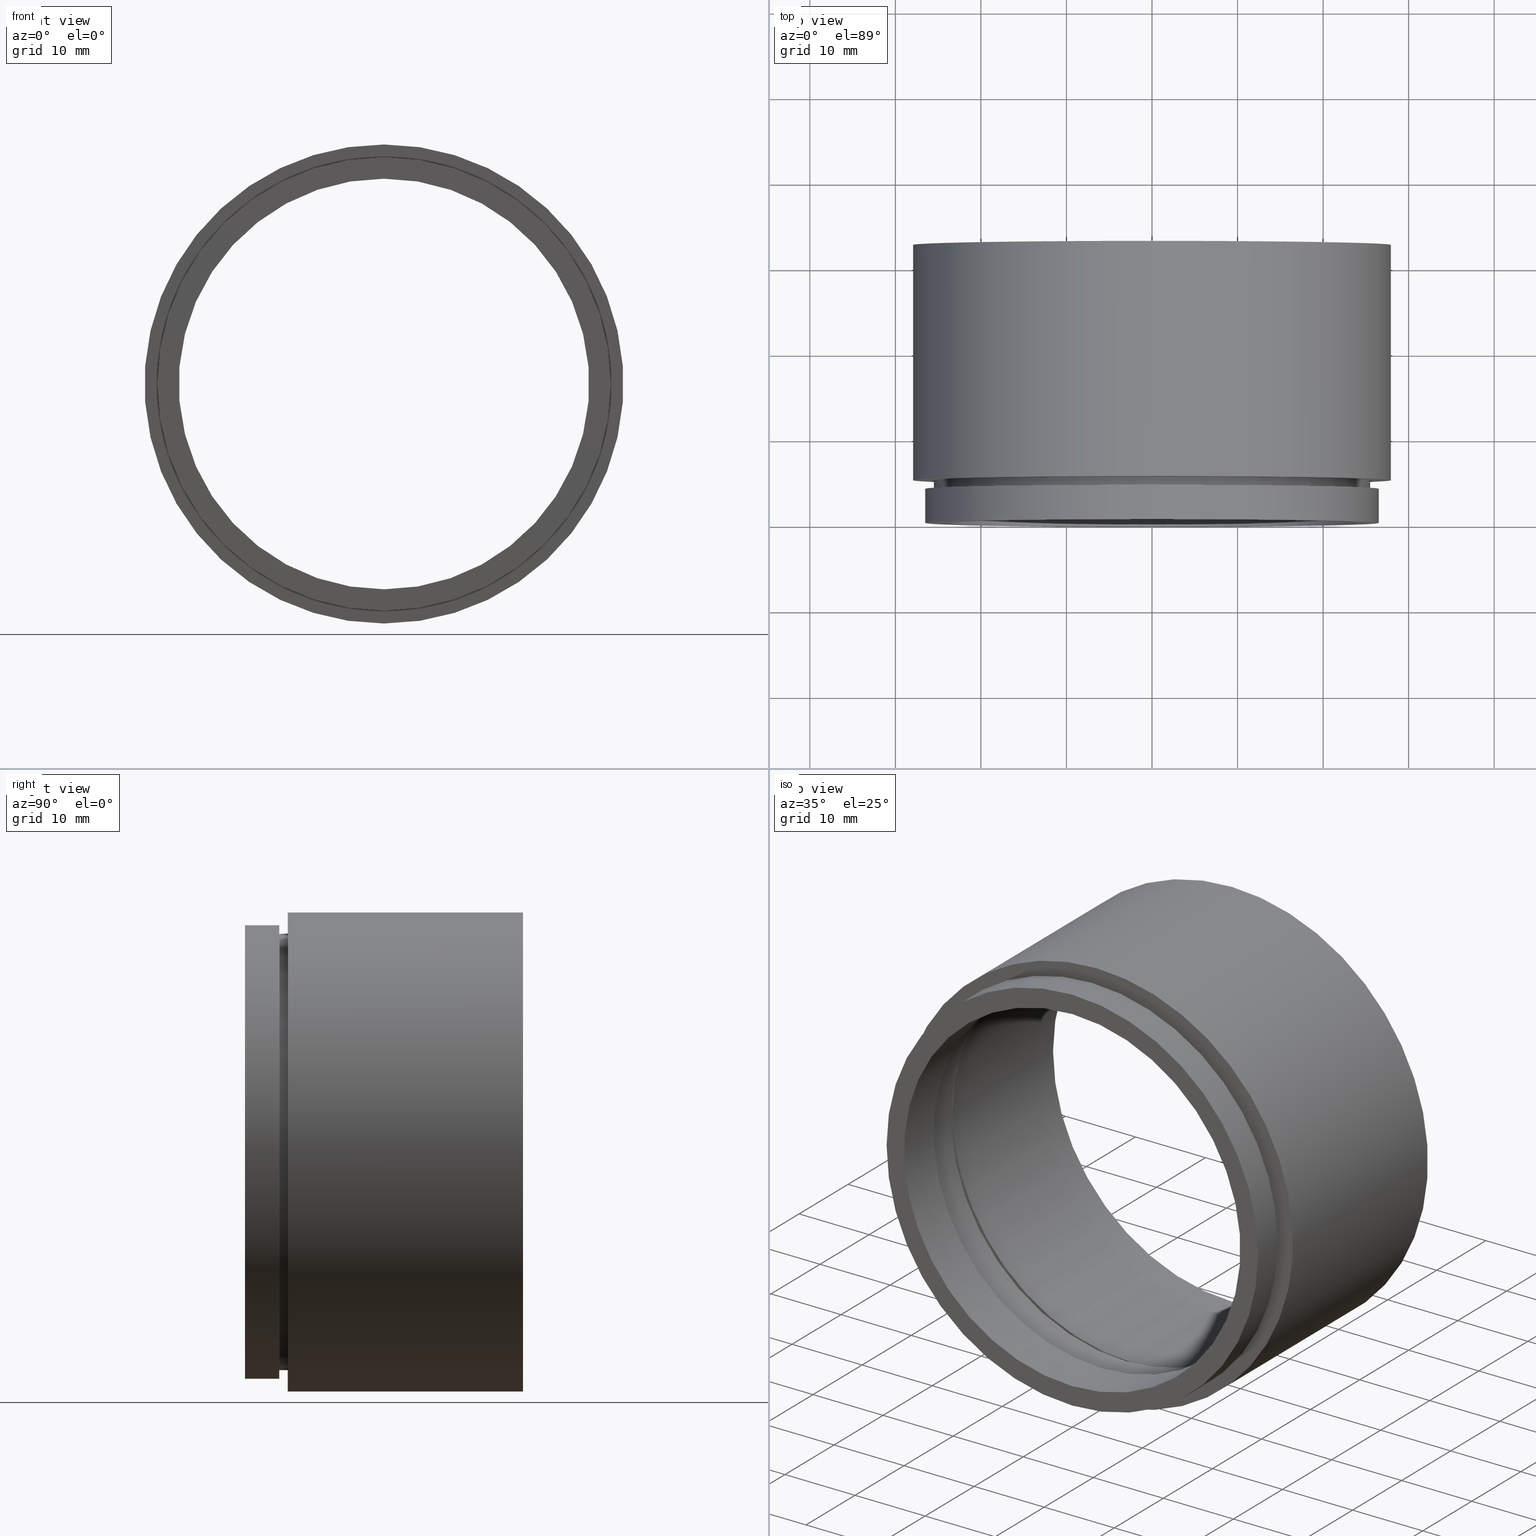
[diagram: canonical four-view strip — front | top / right | iso, engineering-drawing reading convention]
A machine part, canonical four-view strip (front | top / right | iso — engineering-drawing reading convention). The complete STEP part file that produces these views, byte-faithful:
ISO-10303-21;
HEADER;
FILE_DESCRIPTION (( 'STEP AP203' ),
    '1' );
FILE_NAME ('500005.STEP',
    '2019-08-29T06:59:19',
    ( 'user' ),
    ( '΢���й�' ),
    'SwSTEP 2.0',
    'SolidWorks 2016',
    '' );
FILE_SCHEMA (( 'CONFIG_CONTROL_DESIGN' ));
ENDSEC;

DATA;
#1 = CIRCLE ( 'NONE', #386, 25.50000000000000000 ) ;
#2 = AXIS2_PLACEMENT_3D ( 'NONE', #464, #144, #325 ) ;
#3 = FACE_BOUND ( 'NONE', #25, .T. ) ;
#4 = PLANE ( 'NONE',  #83 ) ;
#5 = DIRECTION ( 'NONE',  ( 0.0000000000000000000, 0.0000000000000000000, -1.000000000000000000 ) ) ;
#6 = EDGE_CURVE ( 'NONE', #61, #326, #532, .T. ) ;
#7 = VECTOR ( 'NONE', #216, 1000.000000000000000 ) ;
#8 = FACE_OUTER_BOUND ( 'NONE', #281, .T. ) ;
#9 = EDGE_CURVE ( 'NONE', #447, #265, #251, .T. ) ;
#10 = ORIENTED_EDGE ( 'NONE', *, *, #463, .F. ) ;
#11 = DIRECTION ( 'NONE',  ( -0.0000000000000000000, -1.000000000000000000, -0.0000000000000000000 ) ) ;
#12 = CARTESIAN_POINT ( 'NONE',  ( 0.0000000000000000000, 0.0000000000000000000, 0.0000000000000000000 ) ) ;
#13 = EDGE_CURVE ( 'NONE', #326, #339, #360, .T. ) ;
#14 = SECURITY_CLASSIFICATION_LEVEL ( 'unclassified' ) ;
#15 =( NAMED_UNIT ( * ) PLANE_ANGLE_UNIT ( ) SI_UNIT ( $, .RADIAN. ) );
#16 = EDGE_CURVE ( 'NONE', #345, #447, #391, .T. ) ;
#17 = VERTEX_POINT ( 'NONE', #600 ) ;
#18 = ORIENTED_EDGE ( 'NONE', *, *, #443, .F. ) ;
#19 = CARTESIAN_POINT ( 'NONE',  ( 3.122849337825750200E-015, 32.50000000000000000, 25.50000000000000000 ) ) ;
#20 = FACE_OUTER_BOUND ( 'NONE', #473, .T. ) ;
#21 = EDGE_CURVE ( 'NONE', #326, #61, #296, .T. ) ;
#22 = EDGE_CURVE ( 'NONE', #603, #541, #33, .T. ) ;
#23 = DIRECTION ( 'NONE',  ( 0.0000000000000000000, 0.0000000000000000000, -1.000000000000000000 ) ) ;
#24 = CARTESIAN_POINT ( 'NONE',  ( 3.122849337825750200E-015, 12.00000000000000000, 25.50000000000000000 ) ) ;
#25 = EDGE_LOOP ( 'NONE', ( #510, #602 ) ) ;
#26 = DIRECTION ( 'NONE',  ( -0.0000000000000000000, -1.000000000000000000, -0.0000000000000000000 ) ) ;
#27 = ORIENTED_EDGE ( 'NONE', *, *, #168, .T. ) ;
#28 = CARTESIAN_POINT ( 'NONE',  ( 0.0000000000000000000, 12.00000000000000000, -26.10000000000000100 ) ) ;
#29 = DIRECTION ( 'NONE',  ( -0.0000000000000000000, -1.000000000000000000, -0.0000000000000000000 ) ) ;
#30 = EDGE_CURVE ( 'NONE', #603, #176, #219, .T. ) ;
#31 = DIRECTION ( 'NONE',  ( -0.0000000000000000000, -1.000000000000000000, -0.0000000000000000000 ) ) ;
#32 = CARTESIAN_POINT ( 'NONE',  ( 0.0000000000000000000, 4.000000000000000000, 0.0000000000000000000 ) ) ;
#33 = CIRCLE ( 'NONE', #158, 26.50000000000000000 ) ;
#34 = AXIS2_PLACEMENT_3D ( 'NONE', #241, #26, #23 ) ;
#35 = APPLICATION_CONTEXT ( 'configuration controlled 3d designs of mechanical parts and assemblies' ) ;
#36 = DIRECTION ( 'NONE',  ( -0.0000000000000000000, -1.000000000000000000, -0.0000000000000000000 ) ) ;
#37 = DIRECTION ( 'NONE',  ( -0.0000000000000000000, -1.000000000000000000, -0.0000000000000000000 ) ) ;
#38 = PERSON_AND_ORGANIZATION ( #582, #558 ) ;
#39 = EDGE_CURVE ( 'NONE', #644, #298, #267, .T. ) ;
#40 = CARTESIAN_POINT ( 'NONE',  ( 3.122849337825750200E-015, 5.000000000000000000, 25.50000000000000000 ) ) ;
#41 = CIRCLE ( 'NONE', #315, 24.00000000000000000 ) ;
#42 = ORIENTED_EDGE ( 'NONE', *, *, #64, .T. ) ;
#43 = CC_DESIGN_APPROVAL ( #477, ( #527 ) ) ;
#44 = CARTESIAN_POINT ( 'NONE',  ( 0.0000000000000000000, 11.00000000000000200, 0.0000000000000000000 ) ) ;
#45 = CC_DESIGN_PERSON_AND_ORGANIZATION_ASSIGNMENT ( #601, #394, ( #527 ) ) ;
#46 = DIRECTION ( 'NONE',  ( -0.0000000000000000000, -1.000000000000000000, -0.0000000000000000000 ) ) ;
#47 = CIRCLE ( 'NONE', #257, 26.50000000000000000 ) ;
#48 = CIRCLE ( 'NONE', #381, 26.50000000000000000 ) ;
#49 = DIRECTION ( 'NONE',  ( 0.0000000000000000000, 0.0000000000000000000, -1.000000000000000000 ) ) ;
#50 = ORIENTED_EDGE ( 'NONE', *, *, #16, .F. ) ;
#51 = CIRCLE ( 'NONE', #34, 28.00000000000000000 ) ;
#52 = LINE ( 'NONE', #193, #361 ) ;
#53 = DIRECTION ( 'NONE',  ( -0.0000000000000000000, -1.000000000000000000, -0.0000000000000000000 ) ) ;
#54 = UNCERTAINTY_MEASURE_WITH_UNIT (LENGTH_MEASURE( 1.000000000000000100E-005 ), #574, 'distance_accuracy_value', 'NONE');
#55 = FACE_BOUND ( 'NONE', #634, .T. ) ;
#56 = DIRECTION ( 'NONE',  ( 0.0000000000000000000, 0.0000000000000000000, -1.000000000000000000 ) ) ;
#57 = PERSON_AND_ORGANIZATION ( #582, #558 ) ;
#58 = DIRECTION ( 'NONE',  ( -0.0000000000000000000, -1.000000000000000000, -0.0000000000000000000 ) ) ;
#59 = AXIS2_PLACEMENT_3D ( 'NONE', #283, #263, #177 ) ;
#60 = CARTESIAN_POINT ( 'NONE',  ( 0.0000000000000000000, 12.00000000000000000, -25.50000000000000000 ) ) ;
#61 = VERTEX_POINT ( 'NONE', #233 ) ;
#62 = LINE ( 'NONE', #498, #481 ) ;
#63 = FACE_OUTER_BOUND ( 'NONE', #635, .T. ) ;
#64 = EDGE_CURVE ( 'NONE', #17, #644, #104, .T. ) ;
#65 = CARTESIAN_POINT ( 'NONE',  ( 0.0000000000000000000, 32.50000000000000000, 0.0000000000000000000 ) ) ;
#66 = DIRECTION ( 'NONE',  ( -0.0000000000000000000, -1.000000000000000000, -0.0000000000000000000 ) ) ;
#67 = CC_DESIGN_DATE_AND_TIME_ASSIGNMENT ( #321, #398, ( #527 ) ) ;
#68 = VECTOR ( 'NONE', #92, 1000.000000000000000 ) ;
#69 = ORIENTED_EDGE ( 'NONE', *, *, #593, .T. ) ;
#70 = PRODUCT_DEFINITION_FORMATION_WITH_SPECIFIED_SOURCE ( '�κ�', '', #310, .NOT_KNOWN. ) ;
#71 = CALENDAR_DATE ( 2019, 29, 8 ) ;
#72 = CARTESIAN_POINT ( 'NONE',  ( 0.0000000000000000000, 5.000000000000000000, -28.00000000000000000 ) ) ;
#73 = DIRECTION ( 'NONE',  ( 0.0000000000000000000, 0.0000000000000000000, -1.000000000000000000 ) ) ;
#74 = CYLINDRICAL_SURFACE ( 'NONE', #557, 25.00000000000000000 ) ;
#75 = CARTESIAN_POINT ( 'NONE',  ( 0.0000000000000000000, 0.0000000000000000000, 0.0000000000000000000 ) ) ;
#76 = CALENDAR_DATE ( 2019, 29, 8 ) ;
#77 = PLANE ( 'NONE',  #535 ) ;
#78 = AXIS2_PLACEMENT_3D ( 'NONE', #572, #548, #127 ) ;
#79 = EDGE_LOOP ( 'NONE', ( #317, #630, #236, #390 ) ) ;
#80 = CIRCLE ( 'NONE', #476, 25.00000000000000000 ) ;
#81 = DIRECTION ( 'NONE',  ( 0.0000000000000000000, 0.0000000000000000000, -1.000000000000000000 ) ) ;
#82 = DIRECTION ( 'NONE',  ( -0.0000000000000000000, -1.000000000000000000, -0.0000000000000000000 ) ) ;
#83 = AXIS2_PLACEMENT_3D ( 'NONE', #568, #231, #229 ) ;
#84 = APPROVAL_DATE_TIME ( #209, #477 ) ;
#85 = CARTESIAN_POINT ( 'NONE',  ( 2.939152317953647900E-015, 6.000000000000000000, 24.00000000000000000 ) ) ;
#86 = ORIENTED_EDGE ( 'NONE', *, *, #140, .F. ) ;
#87 = AXIS2_PLACEMENT_3D ( 'NONE', #179, #495, #178 ) ;
#88 = ORIENTED_EDGE ( 'NONE', *, *, #577, .F. ) ;
#89 = ORIENTED_EDGE ( 'NONE', *, *, #140, .T. ) ;
#90 = DIRECTION ( 'NONE',  ( 0.0000000000000000000, -0.0000000000000000000, 1.000000000000000000 ) ) ;
#91 = APPROVAL_ROLE ( '' ) ;
#92 = DIRECTION ( 'NONE',  ( -0.0000000000000000000, -1.000000000000000000, -0.0000000000000000000 ) ) ;
#93 = CALENDAR_DATE ( 2019, 29, 8 ) ;
#94 = DIRECTION ( 'NONE',  ( -0.0000000000000000000, -1.000000000000000000, -0.0000000000000000000 ) ) ;
#95 = CARTESIAN_POINT ( 'NONE',  ( 0.0000000000000000000, 5.000000000000000000, 0.0000000000000000000 ) ) ;
#96 = CARTESIAN_POINT ( 'NONE',  ( 3.196328145774592300E-015, 11.00000000000000200, 26.10000000000000100 ) ) ;
#97 = ORIENTED_EDGE ( 'NONE', *, *, #30, .F. ) ;
#98 = DIRECTION ( 'NONE',  ( 0.0000000000000000000, 0.0000000000000000000, -1.000000000000000000 ) ) ;
#99 = MANIFOLD_SOLID_BREP ( '��ת1', #543 ) ;
#100 = AXIS2_PLACEMENT_3D ( 'NONE', #545, #126, #435 ) ;
#101 = CARTESIAN_POINT ( 'NONE',  ( 0.0000000000000000000, 4.000000000000000000, 0.0000000000000000000 ) ) ;
#102 = VECTOR ( 'NONE', #342, 1000.000000000000000 ) ;
#103 = VERTEX_POINT ( 'NONE', #113 ) ;
#104 = CIRCLE ( 'NONE', #159, 28.00000000000000000 ) ;
#105 = CARTESIAN_POINT ( 'NONE',  ( 0.0000000000000000000, 5.000000000000000000, -25.50000000000000000 ) ) ;
#106 = DIRECTION ( 'NONE',  ( -0.0000000000000000000, -1.000000000000000000, -0.0000000000000000000 ) ) ;
#107 = APPROVAL_DATE_TIME ( #508, #245 ) ;
#108 = DIRECTION ( 'NONE',  ( -0.0000000000000000000, -1.000000000000000000, -0.0000000000000000000 ) ) ;
#109 = EDGE_CURVE ( 'NONE', #188, #287, #475, .T. ) ;
#110 = VERTEX_POINT ( 'NONE', #372 ) ;
#111 = DIRECTION ( 'NONE',  ( -0.0000000000000000000, -1.000000000000000000, -0.0000000000000000000 ) ) ;
#112 = EDGE_LOOP ( 'NONE', ( #514, #259, #205, #626 ) ) ;
#113 = CARTESIAN_POINT ( 'NONE',  ( 0.0000000000000000000, 6.000000000000000900, -25.00000000000000000 ) ) ;
#114 = AXIS2_PLACEMENT_3D ( 'NONE', #445, #131, #81 ) ;
#115 = EDGE_CURVE ( 'NONE', #417, #110, #513, .T. ) ;
#116 = PERSON_AND_ORGANIZATION_ROLE ( 'design_owner' ) ;
#117 = CARTESIAN_POINT ( 'NONE',  ( 0.0000000000000000000, 0.0000000000000000000, 0.0000000000000000000 ) ) ;
#118 = CARTESIAN_POINT ( 'NONE',  ( 26.10000000000000100, 11.00000000000000200, 0.0000000000000000000 ) ) ;
#119 = VECTOR ( 'NONE', #106, 1000.000000000000000 ) ;
#120 = ORIENTED_EDGE ( 'NONE', *, *, #39, .F. ) ;
#121 = DIRECTION ( 'NONE',  ( 0.0000000000000000000, 0.0000000000000000000, -1.000000000000000000 ) ) ;
#122 = CYLINDRICAL_SURFACE ( 'NONE', #492, 24.00000000000000000 ) ;
#123 = EDGE_LOOP ( 'NONE', ( #351, #89 ) ) ;
#124 = EDGE_CURVE ( 'NONE', #345, #242, #129, .T. ) ;
#125 = CARTESIAN_POINT ( 'NONE',  ( 0.0000000000000000000, 12.00000000000000000, 0.0000000000000000000 ) ) ;
#126 = DIRECTION ( 'NONE',  ( -0.0000000000000000000, -1.000000000000000000, -0.0000000000000000000 ) ) ;
#127 = DIRECTION ( 'NONE',  ( 0.0000000000000000000, 0.0000000000000000000, -1.000000000000000000 ) ) ;
#128 = ORIENTED_EDGE ( 'NONE', *, *, #182, .F. ) ;
#129 = CIRCLE ( 'NONE', #511, 25.50000000000000000 ) ;
#130 = DIRECTION ( 'NONE',  ( -0.0000000000000000000, -1.000000000000000000, -0.0000000000000000000 ) ) ;
#131 = DIRECTION ( 'NONE',  ( -0.0000000000000000000, -1.000000000000000000, -0.0000000000000000000 ) ) ;
#132 = AXIS2_PLACEMENT_3D ( 'NONE', #194, #186, #145 ) ;
#133 = DIRECTION ( 'NONE',  ( -0.0000000000000000000, -1.000000000000000000, -0.0000000000000000000 ) ) ;
#134 = COORDINATED_UNIVERSAL_TIME_OFFSET ( 8, 0, .AHEAD. ) ;
#135 = DIRECTION ( 'NONE',  ( -0.0000000000000000000, -1.000000000000000000, -0.0000000000000000000 ) ) ;
#136 = VECTOR ( 'NONE', #36, 1000.000000000000000 ) ;
#137 = VECTOR ( 'NONE', #161, 1000.000000000000000 ) ;
#138 = VERTEX_POINT ( 'NONE', #517 ) ;
#139 = APPROVAL_STATUS ( 'not_yet_approved' ) ;
#140 = EDGE_CURVE ( 'NONE', #298, #426, #583, .T. ) ;
#141 = AXIS2_PLACEMENT_3D ( 'NONE', #598, #260, #619 ) ;
#142 = CARTESIAN_POINT ( 'NONE',  ( 25.00000000000000000, 6.000000000000000000, 0.0000000000000000000 ) ) ;
#143 = DIRECTION ( 'NONE',  ( -0.0000000000000000000, -1.000000000000000000, -0.0000000000000000000 ) ) ;
#144 = DIRECTION ( 'NONE',  ( 0.0000000000000000000, 0.0000000000000000000, 1.000000000000000000 ) ) ;
#145 = DIRECTION ( 'NONE',  ( 0.0000000000000000000, 0.0000000000000000000, -1.000000000000000000 ) ) ;
#146 = CIRCLE ( 'NONE', #403, 28.00000000000000000 ) ;
#147 = EDGE_CURVE ( 'NONE', #17, #426, #235, .T. ) ;
#148 = EDGE_LOOP ( 'NONE', ( #50, #431, #504, #367 ) ) ;
#149 = CC_DESIGN_PERSON_AND_ORGANIZATION_ASSIGNMENT ( #57, #383, ( #427 ) ) ;
#150 = AXIS2_PLACEMENT_3D ( 'NONE', #584, #413, #121 ) ;
#151 = MECHANICAL_CONTEXT ( 'NONE', #35, 'mechanical' ) ;
#152 = EDGE_CURVE ( 'NONE', #480, #274, #449, .T. ) ;
#153 = VECTOR ( 'NONE', #66, 1000.000000000000000 ) ;
#154 = DIRECTION ( 'NONE',  ( 0.0000000000000000000, 0.0000000000000000000, -1.000000000000000000 ) ) ;
#155 = CARTESIAN_POINT ( 'NONE',  ( 0.0000000000000000000, 11.00000000000000200, -25.00000000000000000 ) ) ;
#156 = CIRCLE ( 'NONE', #365, 25.50000000000000000 ) ;
#157 = CYLINDRICAL_SURFACE ( 'NONE', #483, 25.50000000000000000 ) ;
#158 = AXIS2_PLACEMENT_3D ( 'NONE', #264, #135, #210 ) ;
#159 = AXIS2_PLACEMENT_3D ( 'NONE', #65, #31, #432 ) ;
#160 = EDGE_CURVE ( 'NONE', #287, #188, #41, .T. ) ;
#161 = DIRECTION ( 'NONE',  ( -0.0000000000000000000, -1.000000000000000000, -0.0000000000000000000 ) ) ;
#162 = CARTESIAN_POINT ( 'NONE',  ( 0.0000000000000000000, 11.00000000000000200, 0.0000000000000000000 ) ) ;
#163 = ADVANCED_BREP_SHAPE_REPRESENTATION ( '500005', ( #99, #2 ), #224 ) ;
#164 = DIRECTION ( 'NONE',  ( 0.0000000000000000000, 0.0000000000000000000, -1.000000000000000000 ) ) ;
#165 = ORIENTED_EDGE ( 'NONE', *, *, #185, .T. ) ;
#166 = EDGE_CURVE ( 'NONE', #417, #103, #62, .T. ) ;
#167 = VECTOR ( 'NONE', #29, 1000.000000000000000 ) ;
#168 = EDGE_CURVE ( 'NONE', #474, #138, #621, .T. ) ;
#169 = CARTESIAN_POINT ( 'NONE',  ( 3.122849337825750200E-015, 0.0000000000000000000, 25.50000000000000000 ) ) ;
#170 = DIRECTION ( 'NONE',  ( 0.0000000000000000000, 0.0000000000000000000, -1.000000000000000000 ) ) ;
#171 = DIRECTION ( 'NONE',  ( 0.0000000000000000000, 1.000000000000000000, 0.0000000000000000000 ) ) ;
#172 = COORDINATED_UNIVERSAL_TIME_OFFSET ( 8, 0, .AHEAD. ) ;
#173 = CARTESIAN_POINT ( 'NONE',  ( 0.0000000000000000000, 6.000000000000000000, 0.0000000000000000000 ) ) ;
#174 = EDGE_CURVE ( 'NONE', #426, #298, #146, .T. ) ;
#175 = DIRECTION ( 'NONE',  ( 0.0000000000000000000, 1.000000000000000000, 0.0000000000000000000 ) ) ;
#176 = VERTEX_POINT ( 'NONE', #297 ) ;
#177 = DIRECTION ( 'NONE',  ( 0.0000000000000000000, 0.0000000000000000000, -1.000000000000000000 ) ) ;
#178 = DIRECTION ( 'NONE',  ( 0.0000000000000000000, 0.0000000000000000000, -1.000000000000000000 ) ) ;
#179 = CARTESIAN_POINT ( 'NONE',  ( 0.0000000000000000000, 0.0000000000000000000, 0.0000000000000000000 ) ) ;
#180 = DIRECTION ( 'NONE',  ( 0.0000000000000000000, 0.0000000000000000000, -1.000000000000000000 ) ) ;
#181 = CYLINDRICAL_SURFACE ( 'NONE', #446, 25.50000000000000000 ) ;
#182 = EDGE_CURVE ( 'NONE', #265, #447, #1, .T. ) ;
#183 = CARTESIAN_POINT ( 'NONE',  ( 0.0000000000000000000, 0.0000000000000000000, -25.50000000000000000 ) ) ;
#184 = DIRECTION ( 'NONE',  ( 0.0000000000000000000, 0.0000000000000000000, -1.000000000000000000 ) ) ;
#185 = EDGE_CURVE ( 'NONE', #357, #530, #441, .T. ) ;
#186 = DIRECTION ( 'NONE',  ( -0.0000000000000000000, -1.000000000000000000, -0.0000000000000000000 ) ) ;
#187 = LINE ( 'NONE', #643, #68 ) ;
#188 = VERTEX_POINT ( 'NONE', #562 ) ;
#189 = PLANE ( 'NONE',  #507 ) ;
#190 = CC_DESIGN_SECURITY_CLASSIFICATION ( #427, ( #70 ) ) ;
#191 = CYLINDRICAL_SURFACE ( 'NONE', #531, 26.10000000000000100 ) ;
#192 = EDGE_CURVE ( 'NONE', #287, #474, #314, .T. ) ;
#193 = CARTESIAN_POINT ( 'NONE',  ( 0.0000000000000000000, 0.0000000000000000000, -25.50000000000000000 ) ) ;
#194 = CARTESIAN_POINT ( 'NONE',  ( 0.0000000000000000000, 12.00000000000000000, 0.0000000000000000000 ) ) ;
#195 = ORIENTED_EDGE ( 'NONE', *, *, #593, .F. ) ;
#196 = DIRECTION ( 'NONE',  ( 0.0000000000000000000, 0.0000000000000000000, -1.000000000000000000 ) ) ;
#197 = AXIS2_PLACEMENT_3D ( 'NONE', #373, #624, #524 ) ;
#198 = AXIS2_PLACEMENT_3D ( 'NONE', #162, #397, #196 ) ;
#199 = DIRECTION ( 'NONE',  ( 0.0000000000000000000, 0.0000000000000000000, -1.000000000000000000 ) ) ;
#200 = LOCAL_TIME ( 14, 59, 19.00000000000000000, #134 ) ;
#201 = DATE_TIME_ROLE ( 'classification_date' ) ;
#202 = CARTESIAN_POINT ( 'NONE',  ( 0.0000000000000000000, 12.00000000000000000, 0.0000000000000000000 ) ) ;
#203 = AXIS2_PLACEMENT_3D ( 'NONE', #625, #143, #170 ) ;
#204 = DIRECTION ( 'NONE',  ( -0.0000000000000000000, -1.000000000000000000, -0.0000000000000000000 ) ) ;
#205 = ORIENTED_EDGE ( 'NONE', *, *, #240, .T. ) ;
#206 = CYLINDRICAL_SURFACE ( 'NONE', #248, 26.50000000000000000 ) ;
#207 = PLANE ( 'NONE',  #294 ) ;
#208 = DATE_AND_TIME ( #71, #200 ) ;
#209 = DATE_AND_TIME ( #93, #247 ) ;
#210 = DIRECTION ( 'NONE',  ( 0.0000000000000000000, 0.0000000000000000000, -1.000000000000000000 ) ) ;
#211 = CIRCLE ( 'NONE', #423, 26.50000000000000000 ) ;
#212 = CIRCLE ( 'NONE', #493, 26.10000000000000100 ) ;
#213 = FACE_BOUND ( 'NONE', #605, .T. ) ;
#214 = APPLICATION_CONTEXT ( 'configuration controlled 3d designs of mechanical parts and assemblies' ) ;
#215 = CARTESIAN_POINT ( 'NONE',  ( 0.0000000000000000000, 0.0000000000000000000, 0.0000000000000000000 ) ) ;
#216 = DIRECTION ( 'NONE',  ( -0.0000000000000000000, -1.000000000000000000, -0.0000000000000000000 ) ) ;
#217 = EDGE_LOOP ( 'NONE', ( #618, #376, #610, #382 ) ) ;
#218 = CARTESIAN_POINT ( 'NONE',  ( 0.0000000000000000000, 32.50000000000000000, 0.0000000000000000000 ) ) ;
#219 = LINE ( 'NONE', #389, #7 ) ;
#220 = DIRECTION ( 'NONE',  ( 0.0000000000000000000, -1.000000000000000000, -0.0000000000000000000 ) ) ;
#221 = DIRECTION ( 'NONE',  ( 0.0000000000000000000, 0.0000000000000000000, -1.000000000000000000 ) ) ;
#222 = DIRECTION ( 'NONE',  ( -0.0000000000000000000, -1.000000000000000000, -0.0000000000000000000 ) ) ;
#223 = ORIENTED_EDGE ( 'NONE', *, *, #109, .T. ) ;
#224 =( GEOMETRIC_REPRESENTATION_CONTEXT ( 3 ) GLOBAL_UNCERTAINTY_ASSIGNED_CONTEXT ( ( #54 ) ) GLOBAL_UNIT_ASSIGNED_CONTEXT ( ( #574, #15, #434 ) ) REPRESENTATION_CONTEXT ( 'NONE', 'WORKASPACE' ) );
#225 = ORIENTED_EDGE ( 'NONE', *, *, #255, .T. ) ;
#226 = CARTESIAN_POINT ( 'NONE',  ( 0.0000000000000000000, 5.000000000000000000, 0.0000000000000000000 ) ) ;
#227 = CARTESIAN_POINT ( 'NONE',  ( 0.0000000000000000000, 0.0000000000000000000, 0.0000000000000000000 ) ) ;
#228 = CARTESIAN_POINT ( 'NONE',  ( 0.0000000000000000000, 0.0000000000000000000, 0.0000000000000000000 ) ) ;
#229 = DIRECTION ( 'NONE',  ( 0.0000000000000000000, -0.0000000000000000000, 1.000000000000000000 ) ) ;
#230 = EDGE_CURVE ( 'NONE', #541, #425, #187, .T. ) ;
#231 = DIRECTION ( 'NONE',  ( 0.0000000000000000000, 1.000000000000000000, 0.0000000000000000000 ) ) ;
#232 = SHAPE_DEFINITION_REPRESENTATION ( #505, #163 ) ;
#233 = CARTESIAN_POINT ( 'NONE',  ( 3.196328145774592300E-015, 12.00000000000000000, 26.10000000000000100 ) ) ;
#234 = EDGE_CURVE ( 'NONE', #242, #345, #156, .T. ) ;
#235 = LINE ( 'NONE', #615, #573 ) ;
#236 = ORIENTED_EDGE ( 'NONE', *, *, #166, .T. ) ;
#237 = CARTESIAN_POINT ( 'NONE',  ( 0.0000000000000000000, 4.000000000000000000, -26.50000000000000000 ) ) ;
#238 = CARTESIAN_POINT ( 'NONE',  ( 3.429011037612589300E-015, 0.0000000000000000000, 28.00000000000000000 ) ) ;
#239 = EDGE_CURVE ( 'NONE', #274, #480, #416, .T. ) ;
#240 = EDGE_CURVE ( 'NONE', #188, #138, #604, .T. ) ;
#241 = CARTESIAN_POINT ( 'NONE',  ( 0.0000000000000000000, 32.50000000000000000, 0.0000000000000000000 ) ) ;
#242 = VERTEX_POINT ( 'NONE', #540 ) ;
#243 = ORIENTED_EDGE ( 'NONE', *, *, #585, .T. ) ;
#244 = CARTESIAN_POINT ( 'NONE',  ( 3.061616997868383000E-015, 6.000000000000000900, 25.00000000000000000 ) ) ;
#245 = APPROVAL ( #139, 'δָ��' ) ;
#246 = CARTESIAN_POINT ( 'NONE',  ( 0.0000000000000000000, 6.000000000000000900, 0.0000000000000000000 ) ) ;
#247 = LOCAL_TIME ( 14, 59, 19.00000000000000000, #387 ) ;
#248 = AXIS2_PLACEMENT_3D ( 'NONE', #512, #293, #98 ) ;
#249 = DIRECTION ( 'NONE',  ( 0.0000000000000000000, 0.0000000000000000000, -1.000000000000000000 ) ) ;
#250 = ORIENTED_EDGE ( 'NONE', *, *, #454, .F. ) ;
#251 = CIRCLE ( 'NONE', #141, 25.50000000000000000 ) ;
#252 = CARTESIAN_POINT ( 'NONE',  ( 3.245314017740485800E-015, 0.0000000000000000000, 26.50000000000000000 ) ) ;
#253 = ORIENTED_EDGE ( 'NONE', *, *, #21, .T. ) ;
#254 = DIRECTION ( 'NONE',  ( -0.0000000000000000000, -1.000000000000000000, -0.0000000000000000000 ) ) ;
#255 = EDGE_CURVE ( 'NONE', #541, #603, #211, .T. ) ;
#256 = PERSON_AND_ORGANIZATION_ROLE ( 'creator' ) ;
#257 = AXIS2_PLACEMENT_3D ( 'NONE', #227, #11, #269 ) ;
#258 = EDGE_LOOP ( 'NONE', ( #253, #348 ) ) ;
#259 = ORIENTED_EDGE ( 'NONE', *, *, #109, .F. ) ;
#260 = DIRECTION ( 'NONE',  ( -0.0000000000000000000, -1.000000000000000000, -0.0000000000000000000 ) ) ;
#261 = FACE_BOUND ( 'NONE', #349, .T. ) ;
#262 = PERSON_AND_ORGANIZATION ( #582, #558 ) ;
#263 = DIRECTION ( 'NONE',  ( -0.0000000000000000000, -1.000000000000000000, -0.0000000000000000000 ) ) ;
#264 = CARTESIAN_POINT ( 'NONE',  ( 0.0000000000000000000, 4.000000000000000000, 0.0000000000000000000 ) ) ;
#265 = VERTEX_POINT ( 'NONE', #60 ) ;
#266 = EDGE_CURVE ( 'NONE', #110, #417, #597, .T. ) ;
#267 = LINE ( 'NONE', #238, #374 ) ;
#268 = LINE ( 'NONE', #183, #639 ) ;
#269 = DIRECTION ( 'NONE',  ( 0.0000000000000000000, 0.0000000000000000000, -1.000000000000000000 ) ) ;
#270 = CARTESIAN_POINT ( 'NONE',  ( 2.939152317953647900E-015, 0.0000000000000000000, 24.00000000000000000 ) ) ;
#271 = AXIS2_PLACEMENT_3D ( 'NONE', #226, #37, #73 ) ;
#272 = DIRECTION ( 'NONE',  ( -0.0000000000000000000, -1.000000000000000000, -0.0000000000000000000 ) ) ;
#273 = CARTESIAN_POINT ( 'NONE',  ( 2.939152317953647900E-015, 0.0000000000000000000, 24.00000000000000000 ) ) ;
#274 = VERTEX_POINT ( 'NONE', #311 ) ;
#275 = EDGE_LOOP ( 'NONE', ( #537, #304, #550, #97 ) ) ;
#276 = CYLINDRICAL_SURFACE ( 'NONE', #203, 24.00000000000000000 ) ;
#277 = DIRECTION ( 'NONE',  ( -0.0000000000000000000, -1.000000000000000000, -0.0000000000000000000 ) ) ;
#278 = FACE_OUTER_BOUND ( 'NONE', #217, .T. ) ;
#279 = AXIS2_PLACEMENT_3D ( 'NONE', #101, #461, #221 ) ;
#280 = CARTESIAN_POINT ( 'NONE',  ( 0.0000000000000000000, 0.0000000000000000000, -26.10000000000000100 ) ) ;
#281 = EDGE_LOOP ( 'NONE', ( #344, #649, #405, #359 ) ) ;
#282 = EDGE_LOOP ( 'NONE', ( #331, #494, #27, #290 ) ) ;
#283 = CARTESIAN_POINT ( 'NONE',  ( 0.0000000000000000000, 11.00000000000000200, 0.0000000000000000000 ) ) ;
#284 = DIRECTION ( 'NONE',  ( -0.0000000000000000000, -1.000000000000000000, -0.0000000000000000000 ) ) ;
#285 = DIRECTION ( 'NONE',  ( -0.0000000000000000000, -1.000000000000000000, -0.0000000000000000000 ) ) ;
#286 = EDGE_LOOP ( 'NONE', ( #566, #332 ) ) ;
#287 = VERTEX_POINT ( 'NONE', #85 ) ;
#288 = CARTESIAN_POINT ( 'NONE',  ( 0.0000000000000000000, 4.000000000000000000, 0.0000000000000000000 ) ) ;
#289 = LOCAL_TIME ( 14, 59, 19.00000000000000000, #172 ) ;
#290 = ORIENTED_EDGE ( 'NONE', *, *, #240, .F. ) ;
#291 = CARTESIAN_POINT ( 'NONE',  ( 0.0000000000000000000, 6.000000000000000000, 0.0000000000000000000 ) ) ;
#292 = ORIENTED_EDGE ( 'NONE', *, *, #30, .T. ) ;
#293 = DIRECTION ( 'NONE',  ( -0.0000000000000000000, -1.000000000000000000, -0.0000000000000000000 ) ) ;
#294 = AXIS2_PLACEMENT_3D ( 'NONE', #629, #489, #534 ) ;
#295 = APPROVAL_STATUS ( 'not_yet_approved' ) ;
#296 = CIRCLE ( 'NONE', #370, 26.10000000000000100 ) ;
#297 = CARTESIAN_POINT ( 'NONE',  ( 0.0000000000000000000, 0.0000000000000000000, -26.50000000000000000 ) ) ;
#298 = VERTEX_POINT ( 'NONE', #622 ) ;
#299 = FACE_BOUND ( 'NONE', #399, .T. ) ;
#300 = DIRECTION ( 'NONE',  ( -0.0000000000000000000, -1.000000000000000000, -0.0000000000000000000 ) ) ;
#301 = PERSON_AND_ORGANIZATION ( #582, #558 ) ;
#302 = DIRECTION ( 'NONE',  ( 0.0000000000000000000, -1.000000000000000000, -0.0000000000000000000 ) ) ;
#303 = APPROVAL_PERSON_ORGANIZATION ( #354, #439, #458 ) ;
#304 = ORIENTED_EDGE ( 'NONE', *, *, #230, .T. ) ;
#305 = EDGE_LOOP ( 'NONE', ( #564, #225, #292, #195 ) ) ;
#306 = ORIENTED_EDGE ( 'NONE', *, *, #168, .F. ) ;
#307 = DIRECTION ( 'NONE',  ( 0.0000000000000000000, 0.0000000000000000000, -1.000000000000000000 ) ) ;
#308 = CC_DESIGN_PERSON_AND_ORGANIZATION_ASSIGNMENT ( #38, #256, ( #70 ) ) ;
#309 = CARTESIAN_POINT ( 'NONE',  ( 0.0000000000000000000, 0.0000000000000000000, 0.0000000000000000000 ) ) ;
#310 = PRODUCT ( '500005', '500005', '', ( #151 ) ) ;
#311 = CARTESIAN_POINT ( 'NONE',  ( 0.0000000000000000000, 4.000000000000000000, -25.50000000000000000 ) ) ;
#312 = ORIENTED_EDGE ( 'NONE', *, *, #13, .F. ) ;
#313 = ORIENTED_EDGE ( 'NONE', *, *, #463, .T. ) ;
#314 = LINE ( 'NONE', #273, #102 ) ;
#315 = AXIS2_PLACEMENT_3D ( 'NONE', #291, #556, #546 ) ;
#316 = CIRCLE ( 'NONE', #87, 24.00000000000000000 ) ;
#317 = ORIENTED_EDGE ( 'NONE', *, *, #378, .F. ) ;
#318 = ORIENTED_EDGE ( 'NONE', *, *, #152, .F. ) ;
#319 = DIRECTION ( 'NONE',  ( -0.0000000000000000000, -1.000000000000000000, -0.0000000000000000000 ) ) ;
#320 = APPLICATION_PROTOCOL_DEFINITION ( 'international standard', 'config_control_design', 1994, #35 ) ;
#321 = DATE_AND_TIME ( #76, #407 ) ;
#322 = DIRECTION ( 'NONE',  ( -0.0000000000000000000, -1.000000000000000000, -0.0000000000000000000 ) ) ;
#323 = CARTESIAN_POINT ( 'NONE',  ( 3.122849337825750200E-015, 0.0000000000000000000, 25.50000000000000000 ) ) ;
#324 = EDGE_LOOP ( 'NONE', ( #457, #333, #628, #312 ) ) ;
#325 = DIRECTION ( 'NONE',  ( 1.000000000000000000, 0.0000000000000000000, 0.0000000000000000000 ) ) ;
#326 = VERTEX_POINT ( 'NONE', #28 ) ;
#327 = FACE_OUTER_BOUND ( 'NONE', #123, .T. ) ;
#328 = DESIGN_CONTEXT ( 'detailed design', #214, 'design' ) ;
#329 = CYLINDRICAL_SURFACE ( 'NONE', #589, 28.00000000000000000 ) ;
#330 = DIRECTION ( 'NONE',  ( 0.0000000000000000000, 1.000000000000000000, 0.0000000000000000000 ) ) ;
#331 = ORIENTED_EDGE ( 'NONE', *, *, #160, .F. ) ;
#332 = ORIENTED_EDGE ( 'NONE', *, *, #499, .F. ) ;
#333 = ORIENTED_EDGE ( 'NONE', *, *, #569, .T. ) ;
#334 = CC_DESIGN_APPROVAL ( #439, ( #427 ) ) ;
#335 = CALENDAR_DATE ( 2019, 29, 8 ) ;
#336 = ORIENTED_EDGE ( 'NONE', *, *, #124, .T. ) ;
#337 = EDGE_LOOP ( 'NONE', ( #10, #243, #488, #318 ) ) ;
#338 = DIRECTION ( 'NONE',  ( 0.0000000000000000000, 0.0000000000000000000, -1.000000000000000000 ) ) ;
#339 = VERTEX_POINT ( 'NONE', #518 ) ;
#340 = DIRECTION ( 'NONE',  ( -0.0000000000000000000, -1.000000000000000000, -0.0000000000000000000 ) ) ;
#341 = DIRECTION ( 'NONE',  ( -0.0000000000000000000, -1.000000000000000000, -0.0000000000000000000 ) ) ;
#342 = DIRECTION ( 'NONE',  ( -0.0000000000000000000, -1.000000000000000000, -0.0000000000000000000 ) ) ;
#343 = CC_DESIGN_PERSON_AND_ORGANIZATION_ASSIGNMENT ( #301, #627, ( #70 ) ) ;
#344 = ORIENTED_EDGE ( 'NONE', *, *, #266, .F. ) ;
#345 = VERTEX_POINT ( 'NONE', #19 ) ;
#346 = VERTEX_POINT ( 'NONE', #96 ) ;
#347 = DIRECTION ( 'NONE',  ( -0.0000000000000000000, -1.000000000000000000, -0.0000000000000000000 ) ) ;
#348 = ORIENTED_EDGE ( 'NONE', *, *, #6, .T. ) ;
#349 = EDGE_LOOP ( 'NONE', ( #88, #306 ) ) ;
#350 = DIRECTION ( 'NONE',  ( 0.0000000000000000000, 0.0000000000000000000, -1.000000000000000000 ) ) ;
#351 = ORIENTED_EDGE ( 'NONE', *, *, #174, .T. ) ;
#352 = FACE_OUTER_BOUND ( 'NONE', #79, .T. ) ;
#353 = CARTESIAN_POINT ( 'NONE',  ( 25.50000000000000000, 5.000000000000000000, 0.0000000000000000000 ) ) ;
#354 = PERSON_AND_ORGANIZATION ( #582, #558 ) ;
#355 = FACE_OUTER_BOUND ( 'NONE', #148, .T. ) ;
#356 = DIRECTION ( 'NONE',  ( -0.0000000000000000000, -1.000000000000000000, -0.0000000000000000000 ) ) ;
#357 = VERTEX_POINT ( 'NONE', #105 ) ;
#358 = CARTESIAN_POINT ( 'NONE',  ( 3.429011037612589300E-015, 32.50000000000000000, 28.00000000000000000 ) ) ;
#359 = ORIENTED_EDGE ( 'NONE', *, *, #166, .F. ) ;
#360 = LINE ( 'NONE', #280, #137 ) ;
#361 = VECTOR ( 'NONE', #347, 1000.000000000000000 ) ;
#362 = CARTESIAN_POINT ( 'NONE',  ( 0.0000000000000000000, 32.50000000000000000, 0.0000000000000000000 ) ) ;
#363 = PERSON_AND_ORGANIZATION ( #582, #558 ) ;
#364 = ADVANCED_FACE ( 'NONE', ( #278 ), #157, .F. ) ;
#365 = AXIS2_PLACEMENT_3D ( 'NONE', #218, #300, #338 ) ;
#366 = DIRECTION ( 'NONE',  ( 0.0000000000000000000, 0.0000000000000000000, -1.000000000000000000 ) ) ;
#367 = ORIENTED_EDGE ( 'NONE', *, *, #182, .T. ) ;
#368 = EDGE_LOOP ( 'NONE', ( #486, #640 ) ) ;
#369 = DIRECTION ( 'NONE',  ( -0.0000000000000000000, -1.000000000000000000, -0.0000000000000000000 ) ) ;
#370 = AXIS2_PLACEMENT_3D ( 'NONE', #125, #356, #576 ) ;
#371 = FACE_BOUND ( 'NONE', #411, .T. ) ;
#372 = CARTESIAN_POINT ( 'NONE',  ( 3.061616997868383000E-015, 11.00000000000000200, 25.00000000000000000 ) ) ;
#373 = CARTESIAN_POINT ( 'NONE',  ( 0.0000000000000000000, 0.0000000000000000000, 0.0000000000000000000 ) ) ;
#374 = VECTOR ( 'NONE', #638, 1000.000000000000000 ) ;
#375 = EDGE_LOOP ( 'NONE', ( #479, #623, #392, #549 ) ) ;
#376 = ORIENTED_EDGE ( 'NONE', *, *, #16, .T. ) ;
#377 = APPROVAL_ROLE ( '' ) ;
#378 = EDGE_CURVE ( 'NONE', #110, #418, #538, .T. ) ;
#379 = CARTESIAN_POINT ( 'NONE',  ( 0.0000000000000000000, 0.0000000000000000000, -24.00000000000000000 ) ) ;
#380 = CYLINDRICAL_SURFACE ( 'NONE', #515, 25.00000000000000000 ) ;
#381 = AXIS2_PLACEMENT_3D ( 'NONE', #215, #272, #450 ) ;
#382 = ORIENTED_EDGE ( 'NONE', *, *, #460, .F. ) ;
#383 = PERSON_AND_ORGANIZATION_ROLE ( 'classification_officer' ) ;
#384 = ORIENTED_EDGE ( 'NONE', *, *, #585, .F. ) ;
#385 = FACE_OUTER_BOUND ( 'NONE', #402, .T. ) ;
#386 = AXIS2_PLACEMENT_3D ( 'NONE', #202, #108, #366 ) ;
#387 = COORDINATED_UNIVERSAL_TIME_OFFSET ( 8, 0, .AHEAD. ) ;
#388 = ADVANCED_FACE ( 'NONE', ( #63 ), #567, .T. ) ;
#389 = CARTESIAN_POINT ( 'NONE',  ( 0.0000000000000000000, 0.0000000000000000000, -26.50000000000000000 ) ) ;
#390 = ORIENTED_EDGE ( 'NONE', *, *, #408, .T. ) ;
#391 = LINE ( 'NONE', #169, #119 ) ;
#392 = ORIENTED_EDGE ( 'NONE', *, *, #13, .T. ) ;
#393 = VECTOR ( 'NONE', #406, 1000.000000000000000 ) ;
#394 = PERSON_AND_ORGANIZATION_ROLE ( 'creator' ) ;
#395 = DIRECTION ( 'NONE',  ( 0.0000000000000000000, 0.0000000000000000000, -1.000000000000000000 ) ) ;
#396 = CIRCLE ( 'NONE', #59, 26.10000000000000100 ) ;
#397 = DIRECTION ( 'NONE',  ( -0.0000000000000000000, -1.000000000000000000, -0.0000000000000000000 ) ) ;
#398 = DATE_TIME_ROLE ( 'creation_date' ) ;
#399 = EDGE_LOOP ( 'NONE', ( #223, #645 ) ) ;
#400 = CYLINDRICAL_SURFACE ( 'NONE', #487, 25.50000000000000000 ) ;
#401 = DIRECTION ( 'NONE',  ( 0.0000000000000000000, 0.0000000000000000000, -1.000000000000000000 ) ) ;
#402 = EDGE_LOOP ( 'NONE', ( #165, #313, #496, #250 ) ) ;
#403 = AXIS2_PLACEMENT_3D ( 'NONE', #95, #53, #154 ) ;
#404 = FACE_BOUND ( 'NONE', #433, .T. ) ;
#405 = ORIENTED_EDGE ( 'NONE', *, *, #647, .T. ) ;
#406 = DIRECTION ( 'NONE',  ( -0.0000000000000000000, -1.000000000000000000, -0.0000000000000000000 ) ) ;
#407 = LOCAL_TIME ( 14, 59, 19.00000000000000000, #631 ) ;
#408 = EDGE_CURVE ( 'NONE', #103, #418, #80, .T. ) ;
#409 = ADVANCED_FACE ( 'NONE', ( #462 ), #122, .F. ) ;
#410 = EDGE_LOOP ( 'NONE', ( #459, #596 ) ) ;
#411 = EDGE_LOOP ( 'NONE', ( #646, #336 ) ) ;
#412 = CARTESIAN_POINT ( 'NONE',  ( 3.122849337825750200E-015, 4.000000000000000000, 25.50000000000000000 ) ) ;
#413 = DIRECTION ( 'NONE',  ( -0.0000000000000000000, -1.000000000000000000, -0.0000000000000000000 ) ) ;
#414 = CYLINDRICAL_SURFACE ( 'NONE', #100, 26.10000000000000100 ) ;
#415 = AXIS2_PLACEMENT_3D ( 'NONE', #173, #428, #184 ) ;
#416 = CIRCLE ( 'NONE', #436, 25.50000000000000000 ) ;
#417 = VERTEX_POINT ( 'NONE', #155 ) ;
#418 = VERTEX_POINT ( 'NONE', #244 ) ;
#419 = ADVANCED_FACE ( 'NONE', ( #385 ), #400, .T. ) ;
#420 = ADVANCED_FACE ( 'NONE', ( #213, #429 ), #607, .T. ) ;
#421 = FACE_OUTER_BOUND ( 'NONE', #275, .T. ) ;
#422 = CIRCLE ( 'NONE', #612, 25.50000000000000000 ) ;
#423 = AXIS2_PLACEMENT_3D ( 'NONE', #32, #204, #49 ) ;
#424 = DIRECTION ( 'NONE',  ( 0.0000000000000000000, -0.0000000000000000000, 1.000000000000000000 ) ) ;
#425 = VERTEX_POINT ( 'NONE', #252 ) ;
#426 = VERTEX_POINT ( 'NONE', #72 ) ;
#427 = SECURITY_CLASSIFICATION ( '', '', #14 ) ;
#428 = DIRECTION ( 'NONE',  ( -0.0000000000000000000, -1.000000000000000000, -0.0000000000000000000 ) ) ;
#429 = FACE_OUTER_BOUND ( 'NONE', #586, .T. ) ;
#430 = CIRCLE ( 'NONE', #114, 25.00000000000000000 ) ;
#431 = ORIENTED_EDGE ( 'NONE', *, *, #234, .F. ) ;
#432 = DIRECTION ( 'NONE',  ( 0.0000000000000000000, 0.0000000000000000000, -1.000000000000000000 ) ) ;
#433 = EDGE_LOOP ( 'NONE', ( #578, #384 ) ) ;
#434 =( NAMED_UNIT ( * ) SI_UNIT ( $, .STERADIAN. ) SOLID_ANGLE_UNIT ( ) );
#435 = DIRECTION ( 'NONE',  ( 0.0000000000000000000, 0.0000000000000000000, -1.000000000000000000 ) ) ;
#436 = AXIS2_PLACEMENT_3D ( 'NONE', #288, #111, #307 ) ;
#437 = ADVANCED_FACE ( 'NONE', ( #299, #452 ), #189, .T. ) ;
#438 = CARTESIAN_POINT ( 'NONE',  ( 0.0000000000000000000, 0.0000000000000000000, 0.0000000000000000000 ) ) ;
#439 = APPROVAL ( #295, 'δָ��' ) ;
#440 = AXIS2_PLACEMENT_3D ( 'NONE', #560, #369, #642 ) ;
#441 = CIRCLE ( 'NONE', #271, 25.50000000000000000 ) ;
#442 = PERSON_AND_ORGANIZATION ( #582, #558 ) ;
#443 = EDGE_CURVE ( 'NONE', #339, #346, #212, .T. ) ;
#444 = DIRECTION ( 'NONE',  ( 0.0000000000000000000, -0.0000000000000000000, 1.000000000000000000 ) ) ;
#445 = CARTESIAN_POINT ( 'NONE',  ( 0.0000000000000000000, 6.000000000000000900, 0.0000000000000000000 ) ) ;
#446 = AXIS2_PLACEMENT_3D ( 'NONE', #228, #284, #164 ) ;
#447 = VERTEX_POINT ( 'NONE', #24 ) ;
#448 = ADVANCED_FACE ( 'NONE', ( #327, #404 ), #77, .T. ) ;
#449 = CIRCLE ( 'NONE', #279, 25.50000000000000000 ) ;
#450 = DIRECTION ( 'NONE',  ( 0.0000000000000000000, 0.0000000000000000000, -1.000000000000000000 ) ) ;
#451 = CARTESIAN_POINT ( 'NONE',  ( 24.00000000000000000, 0.0000000000000000000, 0.0000000000000000000 ) ) ;
#452 = FACE_OUTER_BOUND ( 'NONE', #368, .T. ) ;
#453 = CC_DESIGN_DATE_AND_TIME_ASSIGNMENT ( #208, #201, ( #427 ) ) ;
#454 = EDGE_CURVE ( 'NONE', #357, #274, #268, .T. ) ;
#455 = ADVANCED_FACE ( 'NONE', ( #8 ), #74, .F. ) ;
#456 = PLANE ( 'NONE',  #533 ) ;
#457 = ORIENTED_EDGE ( 'NONE', *, *, #6, .F. ) ;
#458 = APPROVAL_ROLE ( '' ) ;
#459 = ORIENTED_EDGE ( 'NONE', *, *, #22, .F. ) ;
#460 = EDGE_CURVE ( 'NONE', #242, #265, #52, .T. ) ;
#461 = DIRECTION ( 'NONE',  ( -0.0000000000000000000, -1.000000000000000000, -0.0000000000000000000 ) ) ;
#462 = FACE_OUTER_BOUND ( 'NONE', #112, .T. ) ;
#463 = EDGE_CURVE ( 'NONE', #530, #480, #579, .T. ) ;
#464 = CARTESIAN_POINT ( 'NONE',  ( 0.0000000000000000000, 0.0000000000000000000, 0.0000000000000000000 ) ) ;
#465 = DIRECTION ( 'NONE',  ( 0.0000000000000000000, 0.0000000000000000000, -1.000000000000000000 ) ) ;
#466 = CARTESIAN_POINT ( 'NONE',  ( 0.0000000000000000000, 0.0000000000000000000, 0.0000000000000000000 ) ) ;
#467 = ADVANCED_FACE ( 'NONE', ( #3, #599 ), #497, .T. ) ;
#468 = FACE_OUTER_BOUND ( 'NONE', #258, .T. ) ;
#469 = AXIS2_PLACEMENT_3D ( 'NONE', #118, #171, #90 ) ;
#470 = ADVANCED_FACE ( 'NONE', ( #20, #261 ), #456, .T. ) ;
#471 = DIRECTION ( 'NONE',  ( -0.0000000000000000000, -1.000000000000000000, -0.0000000000000000000 ) ) ;
#472 = ADVANCED_FACE ( 'NONE', ( #371, #617 ), #4, .T. ) ;
#473 = EDGE_LOOP ( 'NONE', ( #590, #69 ) ) ;
#474 = VERTEX_POINT ( 'NONE', #270 ) ;
#475 = CIRCLE ( 'NONE', #415, 24.00000000000000000 ) ;
#476 = AXIS2_PLACEMENT_3D ( 'NONE', #246, #254, #395 ) ;
#477 = APPROVAL ( #587, 'δָ��' ) ;
#478 = AXIS2_PLACEMENT_3D ( 'NONE', #529, #58, #56 ) ;
#479 = ORIENTED_EDGE ( 'NONE', *, *, #569, .F. ) ;
#480 = VERTEX_POINT ( 'NONE', #412 ) ;
#481 = VECTOR ( 'NONE', #341, 1000.000000000000000 ) ;
#482 = CARTESIAN_POINT ( 'NONE',  ( 3.196328145774592300E-015, 0.0000000000000000000, 26.10000000000000100 ) ) ;
#483 = AXIS2_PLACEMENT_3D ( 'NONE', #466, #285, #350 ) ;
#484 = ADVANCED_FACE ( 'NONE', ( #421 ), #206, .T. ) ;
#485 = COORDINATED_UNIVERSAL_TIME_OFFSET ( 8, 0, .AHEAD. ) ;
#486 = ORIENTED_EDGE ( 'NONE', *, *, #408, .F. ) ;
#487 = AXIS2_PLACEMENT_3D ( 'NONE', #641, #319, #180 ) ;
#488 = ORIENTED_EDGE ( 'NONE', *, *, #454, .T. ) ;
#489 = DIRECTION ( 'NONE',  ( 0.0000000000000000000, -1.000000000000000000, -0.0000000000000000000 ) ) ;
#490 = CALENDAR_DATE ( 2019, 29, 8 ) ;
#491 = APPROVAL_DATE_TIME ( #520, #439 ) ;
#492 = AXIS2_PLACEMENT_3D ( 'NONE', #438, #46, #249 ) ;
#493 = AXIS2_PLACEMENT_3D ( 'NONE', #44, #222, #616 ) ;
#494 = ORIENTED_EDGE ( 'NONE', *, *, #192, .T. ) ;
#495 = DIRECTION ( 'NONE',  ( -0.0000000000000000000, -1.000000000000000000, -0.0000000000000000000 ) ) ;
#496 = ORIENTED_EDGE ( 'NONE', *, *, #239, .F. ) ;
#497 = PLANE ( 'NONE',  #554 ) ;
#498 = CARTESIAN_POINT ( 'NONE',  ( 0.0000000000000000000, 0.0000000000000000000, -25.00000000000000000 ) ) ;
#499 = EDGE_CURVE ( 'NONE', #644, #17, #51, .T. ) ;
#500 = DIRECTION ( 'NONE',  ( 0.0000000000000000000, 0.0000000000000000000, -1.000000000000000000 ) ) ;
#501 = APPROVAL_PERSON_ORGANIZATION ( #442, #245, #377 ) ;
#502 = ADVANCED_FACE ( 'NONE', ( #592 ), #329, .T. ) ;
#503 = ORIENTED_EDGE ( 'NONE', *, *, #9, .F. ) ;
#504 = ORIENTED_EDGE ( 'NONE', *, *, #460, .T. ) ;
#505 = PRODUCT_DEFINITION_SHAPE ( 'NONE', 'NONE',  #527 ) ;
#506 = ADVANCED_FACE ( 'NONE', ( #352 ), #380, .F. ) ;
#507 = AXIS2_PLACEMENT_3D ( 'NONE', #142, #175, #424 ) ;
#508 = DATE_AND_TIME ( #335, #289 ) ;
#509 = ADVANCED_FACE ( 'NONE', ( #575 ), #191, .F. ) ;
#510 = ORIENTED_EDGE ( 'NONE', *, *, #239, .T. ) ;
#511 = AXIS2_PLACEMENT_3D ( 'NONE', #362, #471, #401 ) ;
#512 = CARTESIAN_POINT ( 'NONE',  ( 0.0000000000000000000, 0.0000000000000000000, 0.0000000000000000000 ) ) ;
#513 = CIRCLE ( 'NONE', #198, 25.00000000000000000 ) ;
#514 = ORIENTED_EDGE ( 'NONE', *, *, #192, .F. ) ;
#515 = AXIS2_PLACEMENT_3D ( 'NONE', #12, #571, #500 ) ;
#516 = ADVANCED_FACE ( 'NONE', ( #547 ), #414, .F. ) ;
#517 = CARTESIAN_POINT ( 'NONE',  ( 0.0000000000000000000, 0.0000000000000000000, -24.00000000000000000 ) ) ;
#518 = CARTESIAN_POINT ( 'NONE',  ( 0.0000000000000000000, 11.00000000000000200, -26.10000000000000100 ) ) ;
#519 = LINE ( 'NONE', #482, #153 ) ;
#520 = DATE_AND_TIME ( #490, #561 ) ;
#521 = ADVANCED_FACE ( 'NONE', ( #580 ), #570, .T. ) ;
#522 = DIRECTION ( 'NONE',  ( 0.0000000000000000000, 0.0000000000000000000, -1.000000000000000000 ) ) ;
#523 = ADVANCED_FACE ( 'NONE', ( #608 ), #276, .F. ) ;
#524 = DIRECTION ( 'NONE',  ( 0.0000000000000000000, 0.0000000000000000000, -1.000000000000000000 ) ) ;
#525 = ORIENTED_EDGE ( 'NONE', *, *, #39, .T. ) ;
#526 = DIRECTION ( 'NONE',  ( 0.0000000000000000000, 0.0000000000000000000, -1.000000000000000000 ) ) ;
#527 = PRODUCT_DEFINITION ( 'δ֪', '', #70, #328 ) ;
#528 = AXIS2_PLACEMENT_3D ( 'NONE', #609, #94, #594 ) ;
#529 = CARTESIAN_POINT ( 'NONE',  ( 0.0000000000000000000, 0.0000000000000000000, 0.0000000000000000000 ) ) ;
#530 = VERTEX_POINT ( 'NONE', #40 ) ;
#531 = AXIS2_PLACEMENT_3D ( 'NONE', #309, #133, #5 ) ;
#532 = CIRCLE ( 'NONE', #132, 26.10000000000000100 ) ;
#533 = AXIS2_PLACEMENT_3D ( 'NONE', #451, #220, #465 ) ;
#534 = DIRECTION ( 'NONE',  ( 0.0000000000000000000, 0.0000000000000000000, -1.000000000000000000 ) ) ;
#535 = AXIS2_PLACEMENT_3D ( 'NONE', #353, #302, #522 ) ;
#536 = CC_DESIGN_APPROVAL ( #245, ( #70 ) ) ;
#537 = ORIENTED_EDGE ( 'NONE', *, *, #22, .T. ) ;
#538 = LINE ( 'NONE', #565, #136 ) ;
#539 = APPLICATION_PROTOCOL_DEFINITION ( 'international standard', 'config_control_design', 1994, #214 ) ;
#540 = CARTESIAN_POINT ( 'NONE',  ( 0.0000000000000000000, 32.50000000000000000, -25.50000000000000000 ) ) ;
#541 = VERTEX_POINT ( 'NONE', #632 ) ;
#542 = ADVANCED_FACE ( 'NONE', ( #636 ), #181, .T. ) ;
#543 = CLOSED_SHELL ( 'NONE', ( #455, #516, #364, #502, #419, #484, #523, #409, #470, #521, #467, #542, #448, #388, #472, #606, #559, #509, #420, #506, #437 ) ) ;
#544 = CC_DESIGN_PERSON_AND_ORGANIZATION_ASSIGNMENT ( #363, #116, ( #310 ) ) ;
#545 = CARTESIAN_POINT ( 'NONE',  ( 0.0000000000000000000, 0.0000000000000000000, 0.0000000000000000000 ) ) ;
#546 = DIRECTION ( 'NONE',  ( 0.0000000000000000000, 0.0000000000000000000, -1.000000000000000000 ) ) ;
#547 = FACE_OUTER_BOUND ( 'NONE', #324, .T. ) ;
#548 = DIRECTION ( 'NONE',  ( -0.0000000000000000000, -1.000000000000000000, -0.0000000000000000000 ) ) ;
#549 = ORIENTED_EDGE ( 'NONE', *, *, #443, .T. ) ;
#550 = ORIENTED_EDGE ( 'NONE', *, *, #581, .F. ) ;
#551 = ORIENTED_EDGE ( 'NONE', *, *, #266, .T. ) ;
#552 = EDGE_CURVE ( 'NONE', #346, #339, #396, .T. ) ;
#553 = APPROVAL_PERSON_ORGANIZATION ( #262, #477, #91 ) ;
#554 = AXIS2_PLACEMENT_3D ( 'NONE', #588, #330, #444 ) ;
#555 = ORIENTED_EDGE ( 'NONE', *, *, #147, .T. ) ;
#556 = DIRECTION ( 'NONE',  ( -0.0000000000000000000, -1.000000000000000000, -0.0000000000000000000 ) ) ;
#557 = AXIS2_PLACEMENT_3D ( 'NONE', #75, #130, #199 ) ;
#558 = ORGANIZATION ( 'δָ��', 'δָ��', '' ) ;
#559 = ADVANCED_FACE ( 'NONE', ( #468, #55 ), #207, .T. ) ;
#560 = CARTESIAN_POINT ( 'NONE',  ( 0.0000000000000000000, 11.00000000000000200, 0.0000000000000000000 ) ) ;
#561 = LOCAL_TIME ( 14, 59, 19.00000000000000000, #485 ) ;
#562 = CARTESIAN_POINT ( 'NONE',  ( 0.0000000000000000000, 6.000000000000000000, -24.00000000000000000 ) ) ;
#563 = EDGE_LOOP ( 'NONE', ( #42, #525, #611, #613 ) ) ;
#564 = ORIENTED_EDGE ( 'NONE', *, *, #230, .F. ) ;
#565 = CARTESIAN_POINT ( 'NONE',  ( 3.061616997868383000E-015, 0.0000000000000000000, 25.00000000000000000 ) ) ;
#566 = ORIENTED_EDGE ( 'NONE', *, *, #64, .F. ) ;
#567 = CYLINDRICAL_SURFACE ( 'NONE', #478, 28.00000000000000000 ) ;
#568 = CARTESIAN_POINT ( 'NONE',  ( 28.00000000000000000, 32.50000000000000000, 0.0000000000000000000 ) ) ;
#569 = EDGE_CURVE ( 'NONE', #61, #346, #519, .T. ) ;
#570 = CYLINDRICAL_SURFACE ( 'NONE', #528, 26.50000000000000000 ) ;
#571 = DIRECTION ( 'NONE',  ( -0.0000000000000000000, -1.000000000000000000, -0.0000000000000000000 ) ) ;
#572 = CARTESIAN_POINT ( 'NONE',  ( 0.0000000000000000000, 0.0000000000000000000, 0.0000000000000000000 ) ) ;
#573 = VECTOR ( 'NONE', #340, 1000.000000000000000 ) ;
#574 =( LENGTH_UNIT ( ) NAMED_UNIT ( * ) SI_UNIT ( .MILLI., .METRE. ) );
#575 = FACE_OUTER_BOUND ( 'NONE', #375, .T. ) ;
#576 = DIRECTION ( 'NONE',  ( 0.0000000000000000000, 0.0000000000000000000, -1.000000000000000000 ) ) ;
#577 = EDGE_CURVE ( 'NONE', #138, #474, #316, .T. ) ;
#578 = ORIENTED_EDGE ( 'NONE', *, *, #185, .F. ) ;
#579 = LINE ( 'NONE', #323, #393 ) ;
#580 = FACE_OUTER_BOUND ( 'NONE', #305, .T. ) ;
#581 = EDGE_CURVE ( 'NONE', #176, #425, #48, .T. ) ;
#582 = PERSON ( 'δָ��', 'δָ��', 'δָ��', ('δָ��'), ('δָ��'), ('δָ��') ) ;
#583 = CIRCLE ( 'NONE', #150, 28.00000000000000000 ) ;
#584 = CARTESIAN_POINT ( 'NONE',  ( 0.0000000000000000000, 5.000000000000000000, 0.0000000000000000000 ) ) ;
#585 = EDGE_CURVE ( 'NONE', #530, #357, #422, .T. ) ;
#586 = EDGE_LOOP ( 'NONE', ( #18, #620 ) ) ;
#587 = APPROVAL_STATUS ( 'not_yet_approved' ) ;
#588 = CARTESIAN_POINT ( 'NONE',  ( 26.50000000000000000, 4.000000000000000000, 0.0000000000000000000 ) ) ;
#589 = AXIS2_PLACEMENT_3D ( 'NONE', #117, #322, #637 ) ;
#590 = ORIENTED_EDGE ( 'NONE', *, *, #581, .T. ) ;
#591 = ORIENTED_EDGE ( 'NONE', *, *, #499, .T. ) ;
#592 = FACE_OUTER_BOUND ( 'NONE', #563, .T. ) ;
#593 = EDGE_CURVE ( 'NONE', #425, #176, #47, .T. ) ;
#594 = DIRECTION ( 'NONE',  ( 0.0000000000000000000, 0.0000000000000000000, -1.000000000000000000 ) ) ;
#595 = CYLINDRICAL_SURFACE ( 'NONE', #78, 25.50000000000000000 ) ;
#596 = ORIENTED_EDGE ( 'NONE', *, *, #255, .F. ) ;
#597 = CIRCLE ( 'NONE', #440, 25.00000000000000000 ) ;
#598 = CARTESIAN_POINT ( 'NONE',  ( 0.0000000000000000000, 12.00000000000000000, 0.0000000000000000000 ) ) ;
#599 = FACE_OUTER_BOUND ( 'NONE', #410, .T. ) ;
#600 = CARTESIAN_POINT ( 'NONE',  ( 0.0000000000000000000, 32.50000000000000000, -28.00000000000000000 ) ) ;
#601 = PERSON_AND_ORGANIZATION ( #582, #558 ) ;
#602 = ORIENTED_EDGE ( 'NONE', *, *, #152, .T. ) ;
#603 = VERTEX_POINT ( 'NONE', #237 ) ;
#604 = LINE ( 'NONE', #379, #167 ) ;
#605 = EDGE_LOOP ( 'NONE', ( #633, #551 ) ) ;
#606 = ADVANCED_FACE ( 'NONE', ( #355 ), #595, .F. ) ;
#607 = PLANE ( 'NONE',  #469 ) ;
#608 = FACE_OUTER_BOUND ( 'NONE', #282, .T. ) ;
#609 = CARTESIAN_POINT ( 'NONE',  ( 0.0000000000000000000, 0.0000000000000000000, 0.0000000000000000000 ) ) ;
#610 = ORIENTED_EDGE ( 'NONE', *, *, #9, .T. ) ;
#611 = ORIENTED_EDGE ( 'NONE', *, *, #174, .F. ) ;
#612 = AXIS2_PLACEMENT_3D ( 'NONE', #648, #277, #526 ) ;
#613 = ORIENTED_EDGE ( 'NONE', *, *, #147, .F. ) ;
#614 = PRODUCT_RELATED_PRODUCT_CATEGORY ( 'detail', '', ( #310 ) ) ;
#615 = CARTESIAN_POINT ( 'NONE',  ( 0.0000000000000000000, 0.0000000000000000000, -28.00000000000000000 ) ) ;
#616 = DIRECTION ( 'NONE',  ( 0.0000000000000000000, 0.0000000000000000000, -1.000000000000000000 ) ) ;
#617 = FACE_OUTER_BOUND ( 'NONE', #286, .T. ) ;
#618 = ORIENTED_EDGE ( 'NONE', *, *, #124, .F. ) ;
#619 = DIRECTION ( 'NONE',  ( 0.0000000000000000000, 0.0000000000000000000, -1.000000000000000000 ) ) ;
#620 = ORIENTED_EDGE ( 'NONE', *, *, #552, .F. ) ;
#621 = CIRCLE ( 'NONE', #197, 24.00000000000000000 ) ;
#622 = CARTESIAN_POINT ( 'NONE',  ( 3.429011037612589300E-015, 5.000000000000000000, 28.00000000000000000 ) ) ;
#623 = ORIENTED_EDGE ( 'NONE', *, *, #21, .F. ) ;
#624 = DIRECTION ( 'NONE',  ( -0.0000000000000000000, -1.000000000000000000, -0.0000000000000000000 ) ) ;
#625 = CARTESIAN_POINT ( 'NONE',  ( 0.0000000000000000000, 0.0000000000000000000, 0.0000000000000000000 ) ) ;
#626 = ORIENTED_EDGE ( 'NONE', *, *, #577, .T. ) ;
#627 = PERSON_AND_ORGANIZATION_ROLE ( 'design_supplier' ) ;
#628 = ORIENTED_EDGE ( 'NONE', *, *, #552, .T. ) ;
#629 = CARTESIAN_POINT ( 'NONE',  ( 25.50000000000000000, 12.00000000000000000, 0.0000000000000000000 ) ) ;
#630 = ORIENTED_EDGE ( 'NONE', *, *, #115, .F. ) ;
#631 = COORDINATED_UNIVERSAL_TIME_OFFSET ( 8, 0, .AHEAD. ) ;
#632 = CARTESIAN_POINT ( 'NONE',  ( 3.245314017740485800E-015, 4.000000000000000000, 26.50000000000000000 ) ) ;
#633 = ORIENTED_EDGE ( 'NONE', *, *, #115, .T. ) ;
#634 = EDGE_LOOP ( 'NONE', ( #128, #503 ) ) ;
#635 = EDGE_LOOP ( 'NONE', ( #120, #591, #555, #86 ) ) ;
#636 = FACE_OUTER_BOUND ( 'NONE', #337, .T. ) ;
#637 = DIRECTION ( 'NONE',  ( 0.0000000000000000000, 0.0000000000000000000, -1.000000000000000000 ) ) ;
#638 = DIRECTION ( 'NONE',  ( -0.0000000000000000000, -1.000000000000000000, -0.0000000000000000000 ) ) ;
#639 = VECTOR ( 'NONE', #82, 1000.000000000000000 ) ;
#640 = ORIENTED_EDGE ( 'NONE', *, *, #647, .F. ) ;
#641 = CARTESIAN_POINT ( 'NONE',  ( 0.0000000000000000000, 0.0000000000000000000, 0.0000000000000000000 ) ) ;
#642 = DIRECTION ( 'NONE',  ( 0.0000000000000000000, 0.0000000000000000000, -1.000000000000000000 ) ) ;
#643 = CARTESIAN_POINT ( 'NONE',  ( 3.245314017740485800E-015, 0.0000000000000000000, 26.50000000000000000 ) ) ;
#644 = VERTEX_POINT ( 'NONE', #358 ) ;
#645 = ORIENTED_EDGE ( 'NONE', *, *, #160, .T. ) ;
#646 = ORIENTED_EDGE ( 'NONE', *, *, #234, .T. ) ;
#647 = EDGE_CURVE ( 'NONE', #418, #103, #430, .T. ) ;
#648 = CARTESIAN_POINT ( 'NONE',  ( 0.0000000000000000000, 5.000000000000000000, 0.0000000000000000000 ) ) ;
#649 = ORIENTED_EDGE ( 'NONE', *, *, #378, .T. ) ;
ENDSEC;
END-ISO-10303-21;
